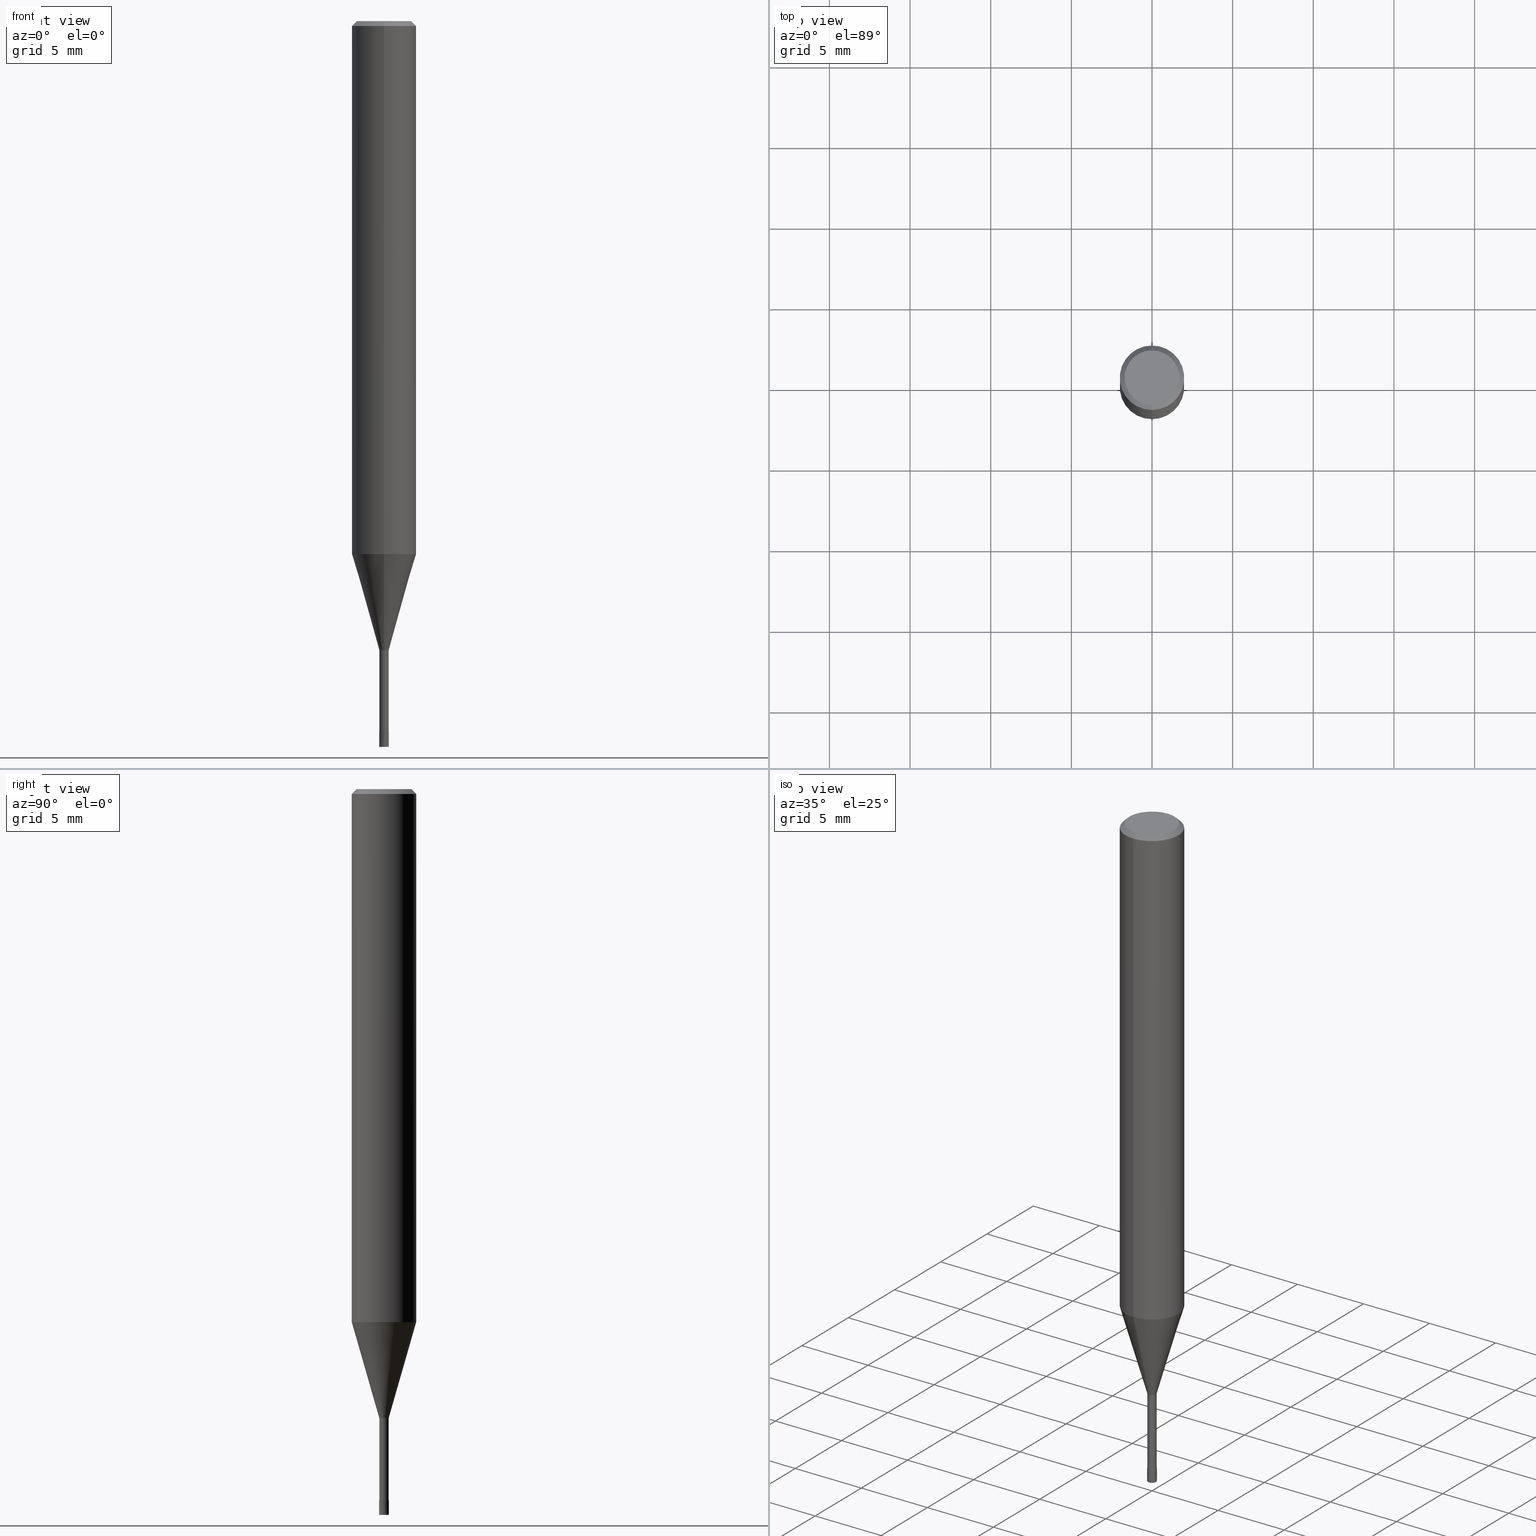
[diagram: canonical four-view strip — front | top / right | iso, engineering-drawing reading convention]
A machine part, canonical four-view strip (front | top / right | iso — engineering-drawing reading convention). The complete STEP part file that produces these views, byte-faithful:
ISO-10303-21;
HEADER;
FILE_DESCRIPTION(('no description'),'unknown implementation level');
FILE_NAME('HLS2006-060-Huellk.stp','  ',('CIMSOURCE GmbH'),('CADClick - KiM GmbH - www.kimweb.de'),'unknown preprocess','ACIS','unknown authorization');
FILE_SCHEMA(('automotive_design'));
ENDSEC;
DATA;
#1=MECHANICAL_DESIGN_GEOMETRIC_PRESENTATION_REPRESENTATION(' ',(#14,#15,#16,#17,#18,#19,#20,#21,#22,#23,#24,#25,#26,#27,#28,#29,#30,#31,#32,#33,#34,#35,#36,#37,#38,#39,#40,#41,#42,#43,#44,#45,#46,#47,#48,#49,#50,#51,#52,#53,#54,#55,#56,#57,#58,#59,#60,#61,#62,#63,#64,#65,#66,#67,#68,#69,#70,#71,#72),#10);
#2=PRODUCT_DEFINITION_CONTEXT('',#73,'design');
#3=APPLICATION_PROTOCOL_DEFINITION('INTERNATIONAL STANDARD','automotive_design',1994,#73);
#4=PRODUCT_CATEGORY_RELATIONSHIP('NONE','NONE',#74,#75);
#5=SHAPE_DEFINITION_REPRESENTATION(#76,#77);
#6=PRODUCT_DEFINITION_CONTEXT('',#78,'design');
#7=APPLICATION_PROTOCOL_DEFINITION('INTERNATIONAL STANDARD','automotive_design',1994,#78);
#8=PRODUCT_CATEGORY_RELATIONSHIP('NONE','NONE',#79,#80);
#9=SHAPE_DEFINITION_REPRESENTATION(#81,#82);
#10= (GEOMETRIC_REPRESENTATION_CONTEXT(3)GLOBAL_UNCERTAINTY_ASSIGNED_CONTEXT((#85))GLOBAL_UNIT_ASSIGNED_CONTEXT((#87,#88,#89))REPRESENTATION_CONTEXT('NONE','WORKSPACE'));
#14=STYLED_ITEM('',(#91),#92);
#15=STYLED_ITEM('',(#93),#94);
#16=STYLED_ITEM('',(#95),#96);
#17=STYLED_ITEM('',(#97),#98);
#18=STYLED_ITEM('',(#99),#100);
#19=STYLED_ITEM('',(#101),#102);
#20=STYLED_ITEM('',(#103),#104);
#21=STYLED_ITEM('',(#105),#106);
#22=STYLED_ITEM('',(#107),#108);
#23=STYLED_ITEM('',(#109),#110);
#24=STYLED_ITEM('',(#111),#112);
#25=STYLED_ITEM('',(#113),#114);
#26=STYLED_ITEM('',(#115),#116);
#27=STYLED_ITEM('',(#117),#118);
#28=STYLED_ITEM('',(#119),#120);
#29=STYLED_ITEM('',(#121),#122);
#30=STYLED_ITEM('',(#123),#124);
#31=STYLED_ITEM('',(#125),#126);
#32=STYLED_ITEM('',(#127),#128);
#33=STYLED_ITEM('',(#129),#130);
#34=STYLED_ITEM('',(#131),#132);
#35=STYLED_ITEM('',(#133),#134);
#36=STYLED_ITEM('',(#135),#136);
#37=STYLED_ITEM('',(#137),#138);
#38=STYLED_ITEM('',(#139),#140);
#39=STYLED_ITEM('',(#141),#142);
#40=STYLED_ITEM('',(#143),#144);
#41=STYLED_ITEM('',(#145),#146);
#42=STYLED_ITEM('',(#147),#148);
#43=STYLED_ITEM('',(#149),#150);
#44=STYLED_ITEM('',(#151),#152);
#45=STYLED_ITEM('',(#153),#154);
#46=STYLED_ITEM('',(#155),#156);
#47=STYLED_ITEM('',(#157),#158);
#48=STYLED_ITEM('',(#159),#160);
#49=STYLED_ITEM('',(#161),#162);
#50=STYLED_ITEM('',(#163),#164);
#51=STYLED_ITEM('',(#165),#166);
#52=STYLED_ITEM('',(#167),#168);
#53=STYLED_ITEM('',(#169),#170);
#54=STYLED_ITEM('',(#171),#172);
#55=STYLED_ITEM('',(#173),#174);
#56=STYLED_ITEM('',(#175),#176);
#57=STYLED_ITEM('',(#177),#178);
#58=STYLED_ITEM('',(#179),#180);
#59=STYLED_ITEM('',(#181),#182);
#60=STYLED_ITEM('',(#183),#184);
#61=STYLED_ITEM('',(#185),#186);
#62=STYLED_ITEM('',(#187),#188);
#63=STYLED_ITEM('',(#189),#190);
#64=STYLED_ITEM('',(#191),#192);
#65=STYLED_ITEM('',(#193),#194);
#66=STYLED_ITEM('',(#195),#196);
#67=STYLED_ITEM('',(#197),#198);
#68=STYLED_ITEM('',(#199),#200);
#69=STYLED_ITEM('',(#201),#202);
#70=STYLED_ITEM('',(#203),#204);
#71=STYLED_ITEM('',(#205),#206);
#72=STYLED_ITEM('',(#207),#208);
#73=APPLICATION_CONTEXT(' ');
#74=PRODUCT_CATEGORY('part','NONE');
#75=PRODUCT_RELATED_PRODUCT_CATEGORY('detail',' ',(#209));
#76=PRODUCT_DEFINITION_SHAPE('NONE','NONE',#210);
#77=ADVANCED_BREP_SHAPE_REPRESENTATION('1',(#122,#211),#10);
#78=APPLICATION_CONTEXT(' ');
#79=PRODUCT_CATEGORY('part','NONE');
#80=PRODUCT_RELATED_PRODUCT_CATEGORY('detail',' ',(#212));
#81=PRODUCT_DEFINITION_SHAPE('NONE','NONE',#213);
#82=ADVANCED_BREP_SHAPE_REPRESENTATION('2',(#194,#214),#10);
#85=UNCERTAINTY_MEASURE_WITH_UNIT(LENGTH_MEASURE(1.0E-006),#87,'','');
#87= (CONVERSION_BASED_UNIT('MILLIMETRE',#217)LENGTH_UNIT()NAMED_UNIT(#220));
#88= (NAMED_UNIT(#222)PLANE_ANGLE_UNIT()SI_UNIT($,.RADIAN.));
#89= (NAMED_UNIT(#222)SOLID_ANGLE_UNIT()SI_UNIT($,.STERADIAN.));
#91=PRESENTATION_STYLE_ASSIGNMENT((#228));
#92=ADVANCED_FACE('',(#229),#230,.T.);
#93=PRESENTATION_STYLE_ASSIGNMENT((#231));
#94=VERTEX_POINT('',#232);
#95=PRESENTATION_STYLE_ASSIGNMENT((#233));
#96=VERTEX_POINT('',#234);
#97=PRESENTATION_STYLE_ASSIGNMENT((#235));
#98=EDGE_CURVE('',#108,#172,#236,.T.);
#99=PRESENTATION_STYLE_ASSIGNMENT((#237));
#100=VERTEX_POINT('',#238);
#101=PRESENTATION_STYLE_ASSIGNMENT((#239));
#102=EDGE_CURVE('',#142,#148,#240,.T.);
#103=PRESENTATION_STYLE_ASSIGNMENT((#241));
#104=EDGE_CURVE('',#178,#116,#242,.T.);
#105=PRESENTATION_STYLE_ASSIGNMENT((#243));
#106=EDGE_CURVE('',#142,#200,#244,.T.);
#107=PRESENTATION_STYLE_ASSIGNMENT((#245));
#108=VERTEX_POINT('',#246);
#109=PRESENTATION_STYLE_ASSIGNMENT((#247));
#110=EDGE_CURVE('',#94,#188,#248,.T.);
#111=PRESENTATION_STYLE_ASSIGNMENT((#249));
#112=EDGE_CURVE('',#188,#100,#250,.T.);
#113=PRESENTATION_STYLE_ASSIGNMENT((#251));
#114=ADVANCED_FACE('',(#252),#253,.T.);
#115=PRESENTATION_STYLE_ASSIGNMENT((#254));
#116=VERTEX_POINT('',#255);
#117=PRESENTATION_STYLE_ASSIGNMENT((#256));
#118=EDGE_CURVE('',#188,#116,#257,.T.);
#119=PRESENTATION_STYLE_ASSIGNMENT((#258));
#120=EDGE_CURVE('',#148,#96,#259,.T.);
#121=PRESENTATION_STYLE_ASSIGNMENT((#260));
#122=MANIFOLD_SOLID_BREP('1',#261);
#123=PRESENTATION_STYLE_ASSIGNMENT((#262));
#124=VERTEX_POINT('',#263);
#125=PRESENTATION_STYLE_ASSIGNMENT((#264));
#126=EDGE_CURVE('',#100,#188,#265,.T.);
#127=PRESENTATION_STYLE_ASSIGNMENT((#266));
#128=ADVANCED_FACE('',(#267,#268),#269,.T.);
#129=PRESENTATION_STYLE_ASSIGNMENT((#270));
#130=ADVANCED_FACE('',(#271),#272,.T.);
#131=PRESENTATION_STYLE_ASSIGNMENT((#273));
#132=EDGE_CURVE('',#196,#108,#274,.T.);
#133=PRESENTATION_STYLE_ASSIGNMENT((#275));
#134=EDGE_CURVE('',#172,#124,#276,.T.);
#135=PRESENTATION_STYLE_ASSIGNMENT((#277));
#136=EDGE_CURVE('',#190,#96,#278,.T.);
#137=PRESENTATION_STYLE_ASSIGNMENT((#279));
#138=ADVANCED_FACE('',(#280),#281,.T.);
#139=PRESENTATION_STYLE_ASSIGNMENT((#282));
#140=ADVANCED_FACE('',(#283),#284,.T.);
#141=PRESENTATION_STYLE_ASSIGNMENT((#285));
#142=VERTEX_POINT('',#286);
#143=PRESENTATION_STYLE_ASSIGNMENT((#287));
#144=EDGE_CURVE('',#190,#208,#288,.T.);
#145=PRESENTATION_STYLE_ASSIGNMENT((#289));
#146=EDGE_CURVE('',#148,#208,#290,.T.);
#147=PRESENTATION_STYLE_ASSIGNMENT((#291));
#148=VERTEX_POINT('',#292);
#149=PRESENTATION_STYLE_ASSIGNMENT((#293));
#150=ADVANCED_FACE('',(#294),#295,.T.);
#151=PRESENTATION_STYLE_ASSIGNMENT((#296));
#152=VERTEX_POINT('',#297);
#153=PRESENTATION_STYLE_ASSIGNMENT((#298));
#154=EDGE_CURVE('',#172,#108,#299,.T.);
#155=PRESENTATION_STYLE_ASSIGNMENT((#300));
#156=EDGE_CURVE('',#152,#94,#301,.T.);
#157=PRESENTATION_STYLE_ASSIGNMENT((#302));
#158=EDGE_CURVE('',#200,#142,#303,.T.);
#159=PRESENTATION_STYLE_ASSIGNMENT((#304));
#160=ADVANCED_FACE('',(#305),#306,.T.);
#161=PRESENTATION_STYLE_ASSIGNMENT((#307));
#162=EDGE_CURVE('',#178,#100,#308,.T.);
#163=PRESENTATION_STYLE_ASSIGNMENT((#309));
#164=ADVANCED_FACE('',(#310),#311,.T.);
#165=PRESENTATION_STYLE_ASSIGNMENT((#312));
#166=ADVANCED_FACE('',(#313),#314,.T.);
#167=PRESENTATION_STYLE_ASSIGNMENT((#315));
#168=EDGE_CURVE('',#94,#152,#316,.T.);
#169=PRESENTATION_STYLE_ASSIGNMENT((#317));
#170=EDGE_CURVE('',#100,#152,#318,.T.);
#171=PRESENTATION_STYLE_ASSIGNMENT((#319));
#172=VERTEX_POINT('',#320);
#173=PRESENTATION_STYLE_ASSIGNMENT((#321));
#174=EDGE_CURVE('',#124,#196,#322,.T.);
#175=PRESENTATION_STYLE_ASSIGNMENT((#323));
#176=ADVANCED_FACE('',(#324),#325,.T.);
#177=PRESENTATION_STYLE_ASSIGNMENT((#326));
#178=VERTEX_POINT('',#327);
#179=PRESENTATION_STYLE_ASSIGNMENT((#328));
#180=EDGE_CURVE('',#208,#190,#329,.T.);
#181=PRESENTATION_STYLE_ASSIGNMENT((#330));
#182=EDGE_CURVE('',#96,#148,#331,.T.);
#183=PRESENTATION_STYLE_ASSIGNMENT((#332));
#184=ADVANCED_FACE('',(#333),#334,.T.);
#185=PRESENTATION_STYLE_ASSIGNMENT((#335));
#186=EDGE_CURVE('',#196,#124,#336,.T.);
#187=PRESENTATION_STYLE_ASSIGNMENT((#337));
#188=VERTEX_POINT('',#338);
#189=PRESENTATION_STYLE_ASSIGNMENT((#339));
#190=VERTEX_POINT('',#340);
#191=PRESENTATION_STYLE_ASSIGNMENT((#341));
#192=ADVANCED_FACE('',(#342),#343,.T.);
#193=PRESENTATION_STYLE_ASSIGNMENT((#344));
#194=MANIFOLD_SOLID_BREP('2',#345);
#195=PRESENTATION_STYLE_ASSIGNMENT((#346));
#196=VERTEX_POINT('',#347);
#197=PRESENTATION_STYLE_ASSIGNMENT((#348));
#198=ADVANCED_FACE('',(#349),#350,.T.);
#199=PRESENTATION_STYLE_ASSIGNMENT((#351));
#200=VERTEX_POINT('',#352);
#201=PRESENTATION_STYLE_ASSIGNMENT((#353));
#202=EDGE_CURVE('',#96,#200,#354,.T.);
#203=PRESENTATION_STYLE_ASSIGNMENT((#355));
#204=EDGE_CURVE('',#116,#178,#356,.T.);
#205=PRESENTATION_STYLE_ASSIGNMENT((#357));
#206=ADVANCED_FACE('',(#358),#359,.T.);
#207=PRESENTATION_STYLE_ASSIGNMENT((#360));
#208=VERTEX_POINT('',#361);
#209=PRODUCT('1','1','PART-1-DESC',(#362));
#210=PRODUCT_DEFINITION('NONE','NONE',#363,#2);
#211=AXIS2_PLACEMENT_3D('',#364,#365,#366);
#212=PRODUCT('2','2','PART-2-DESC',(#367));
#213=PRODUCT_DEFINITION('NONE','NONE',#368,#6);
#214=AXIS2_PLACEMENT_3D('',#369,#370,#371);
#217=LENGTH_MEASURE_WITH_UNIT(LENGTH_MEASURE(1.0),#372);
#220=DIMENSIONAL_EXPONENTS(1.0,0.0,0.0,0.0,0.0,0.0,0.0);
#222=DIMENSIONAL_EXPONENTS(0.0,0.0,0.0,0.0,0.0,0.0,0.0);
#228=SURFACE_STYLE_USAGE(.BOTH.,#373);
#229=FACE_OUTER_BOUND('',#374,.T.);
#230=CYLINDRICAL_SURFACE('',#375,0.28995);
#231=POINT_STYLE(' ',#376,POSITIVE_LENGTH_MEASURE(1.0E-006),#377);
#232=CARTESIAN_POINT('',(2.44921270764475E-016,-2.0,-33.037));
#233=POINT_STYLE(' ',#378,POSITIVE_LENGTH_MEASURE(1.0E-006),#379);
#234=CARTESIAN_POINT('',(0.0,0.28995,-39.0));
#235=CURVE_STYLE('',#380,POSITIVE_LENGTH_MEASURE(1.0E-006),#381);
#236=CIRCLE('',#382,0.2999);
#237=POINT_STYLE(' ',#383,POSITIVE_LENGTH_MEASURE(1.0E-006),#384);
#238=CARTESIAN_POINT('',(0.0,2.0,-0.299999999999997));
#239=CURVE_STYLE('',#385,POSITIVE_LENGTH_MEASURE(1.0E-006),#386);
#240=LINE('',#387,#388);
#241=CURVE_STYLE('',#389,POSITIVE_LENGTH_MEASURE(1.0E-006),#390);
#242=CIRCLE('',#391,1.7);
#243=CURVE_STYLE('',#392,POSITIVE_LENGTH_MEASURE(1.0E-006),#393);
#244=CIRCLE('',#394,0.28995);
#245=POINT_STYLE(' ',#395,POSITIVE_LENGTH_MEASURE(1.0E-006),#396);
#246=CARTESIAN_POINT('',(3.67259445511331E-017,-0.2999,-44.1));
#247=CURVE_STYLE('',#397,POSITIVE_LENGTH_MEASURE(1.0E-006),#398);
#248=LINE('',#399,#400);
#249=CURVE_STYLE('',#401,POSITIVE_LENGTH_MEASURE(1.0E-006),#402);
#250=CIRCLE('',#403,2.0);
#251=SURFACE_STYLE_USAGE(.BOTH.,#404);
#252=FACE_OUTER_BOUND('',#405,.T.);
#253=CONICAL_SURFACE('',#406,0.29995,0.000111111110653851);
#254=POINT_STYLE(' ',#407,POSITIVE_LENGTH_MEASURE(1.0E-006),#408);
#255=CARTESIAN_POINT('',(2.08183080149804E-016,-1.7,0.0));
#256=CURVE_STYLE('',#409,POSITIVE_LENGTH_MEASURE(1.0E-006),#410);
#257=LINE('',#411,#412);
#258=CURVE_STYLE('',#413,POSITIVE_LENGTH_MEASURE(1.0E-006),#414);
#259=CIRCLE('',#415,0.28995);
#260=SURFACE_STYLE_USAGE(.BOTH.,#416);
#261=CLOSED_SHELL('',(#92,#176,#150,#198,#128,#206,#140,#138,#184,#130,#164));
#262=POINT_STYLE(' ',#417,POSITIVE_LENGTH_MEASURE(1.0E-006),#418);
#263=CARTESIAN_POINT('',(0.0,0.3,-45.0));
#264=CURVE_STYLE('',#419,POSITIVE_LENGTH_MEASURE(1.0E-006),#420);
#265=CIRCLE('',#421,2.0);
#266=SURFACE_STYLE_USAGE(.BOTH.,#422);
#267=FACE_OUTER_BOUND('',#423,.T.);
#268=FACE_BOUND('',#424,.T.);
#269=PLANE('',#425);
#270=SURFACE_STYLE_USAGE(.BOTH.,#426);
#271=FACE_OUTER_BOUND('',#427,.T.);
#272=CYLINDRICAL_SURFACE('',#428,0.28995);
#273=CURVE_STYLE('',#429,POSITIVE_LENGTH_MEASURE(1.0E-006),#430);
#274=LINE('',#431,#432);
#275=CURVE_STYLE('',#433,POSITIVE_LENGTH_MEASURE(1.0E-006),#434);
#276=LINE('',#435,#436);
#277=CURVE_STYLE('',#437,POSITIVE_LENGTH_MEASURE(1.0E-006),#438);
#278=LINE('',#439,#440);
#279=SURFACE_STYLE_USAGE(.BOTH.,#441);
#280=FACE_OUTER_BOUND('',#442,.T.);
#281=CYLINDRICAL_SURFACE('',#443,2.0);
#282=SURFACE_STYLE_USAGE(.BOTH.,#444);
#283=FACE_OUTER_BOUND('',#445,.T.);
#284=CONICAL_SURFACE('',#446,1.85,0.785398163397453);
#285=POINT_STYLE(' ',#447,POSITIVE_LENGTH_MEASURE(1.0E-006),#448);
#286=CARTESIAN_POINT('',(3.55074612290798E-017,-0.28995,-44.1));
#287=CURVE_STYLE('',#449,POSITIVE_LENGTH_MEASURE(1.0E-006),#450);
#288=CIRCLE('',#451,1.99995);
#289=CURVE_STYLE('',#452,POSITIVE_LENGTH_MEASURE(1.0E-006),#453);
#290=LINE('',#454,#455);
#291=POINT_STYLE(' ',#456,POSITIVE_LENGTH_MEASURE(1.0E-006),#457);
#292=CARTESIAN_POINT('',(3.55074612290798E-017,-0.28995,-39.0));
#293=SURFACE_STYLE_USAGE(.BOTH.,#458);
#294=FACE_OUTER_BOUND('',#459,.T.);
#295=CYLINDRICAL_SURFACE('',#460,2.0);
#296=POINT_STYLE(' ',#461,POSITIVE_LENGTH_MEASURE(1.0E-006),#462);
#297=CARTESIAN_POINT('',(0.0,2.0,-33.037));
#298=CURVE_STYLE('',#463,POSITIVE_LENGTH_MEASURE(1.0E-006),#464);
#299=CIRCLE('',#465,0.2999);
#300=CURVE_STYLE('',#466,POSITIVE_LENGTH_MEASURE(1.0E-006),#467);
#301=CIRCLE('',#468,2.0);
#302=CURVE_STYLE('',#469,POSITIVE_LENGTH_MEASURE(1.0E-006),#470);
#303=CIRCLE('',#471,0.28995);
#304=SURFACE_STYLE_USAGE(.BOTH.,#472);
#305=FACE_OUTER_BOUND('',#473,.T.);
#306=CONICAL_SURFACE('',#474,0.29995,0.000111111110653851);
#307=CURVE_STYLE('',#475,POSITIVE_LENGTH_MEASURE(1.0E-006),#476);
#308=LINE('',#477,#478);
#309=SURFACE_STYLE_USAGE(.BOTH.,#479);
#310=FACE_OUTER_BOUND('',#480,.T.);
#311=PLANE('',#481);
#312=SURFACE_STYLE_USAGE(.BOTH.,#482);
#313=FACE_OUTER_BOUND('',#483,.T.);
#314=PLANE('',#484);
#315=CURVE_STYLE('',#485,POSITIVE_LENGTH_MEASURE(1.0E-006),#486);
#316=CIRCLE('',#487,2.0);
#317=CURVE_STYLE('',#488,POSITIVE_LENGTH_MEASURE(1.0E-006),#489);
#318=LINE('',#490,#491);
#319=POINT_STYLE(' ',#492,POSITIVE_LENGTH_MEASURE(1.0E-006),#493);
#320=CARTESIAN_POINT('',(0.0,0.2999,-44.1));
#321=CURVE_STYLE('',#494,POSITIVE_LENGTH_MEASURE(1.0E-006),#495);
#322=CIRCLE('',#496,0.3);
#323=SURFACE_STYLE_USAGE(.BOTH.,#497);
#324=FACE_OUTER_BOUND('',#498,.T.);
#325=CONICAL_SURFACE('',#499,1.14495,0.279273950674422);
#326=POINT_STYLE(' ',#500,POSITIVE_LENGTH_MEASURE(1.0E-006),#501);
#327=CARTESIAN_POINT('',(0.0,1.7,0.0));
#328=CURVE_STYLE('',#502,POSITIVE_LENGTH_MEASURE(1.0E-006),#503);
#329=CIRCLE('',#504,1.99995);
#330=CURVE_STYLE('',#505,POSITIVE_LENGTH_MEASURE(1.0E-006),#506);
#331=CIRCLE('',#507,0.28995);
#332=SURFACE_STYLE_USAGE(.BOTH.,#508);
#333=FACE_OUTER_BOUND('',#509,.T.);
#334=CONICAL_SURFACE('',#510,1.14495,0.279273950674422);
#335=CURVE_STYLE('',#511,POSITIVE_LENGTH_MEASURE(1.0E-006),#512);
#336=CIRCLE('',#513,0.3);
#337=POINT_STYLE(' ',#514,POSITIVE_LENGTH_MEASURE(1.0E-006),#515);
#338=CARTESIAN_POINT('',(2.44921270764475E-016,-2.0,-0.299999999999997));
#339=POINT_STYLE(' ',#516,POSITIVE_LENGTH_MEASURE(1.0E-006),#517);
#340=CARTESIAN_POINT('',(0.0,1.99995,-33.037));
#341=SURFACE_STYLE_USAGE(.BOTH.,#518);
#342=FACE_OUTER_BOUND('',#519,.T.);
#343=PLANE('',#520);
#344=SURFACE_STYLE_USAGE(.BOTH.,#521);
#345=CLOSED_SHELL('',(#114,#166,#160,#192));
#346=POINT_STYLE(' ',#522,POSITIVE_LENGTH_MEASURE(1.0E-006),#523);
#347=CARTESIAN_POINT('',(3.67381906146713E-017,-0.3,-45.0));
#348=SURFACE_STYLE_USAGE(.BOTH.,#524);
#349=FACE_OUTER_BOUND('',#525,.T.);
#350=CONICAL_SURFACE('',#526,1.85,0.785398163397453);
#351=POINT_STYLE(' ',#527,POSITIVE_LENGTH_MEASURE(1.0E-006),#528);
#352=CARTESIAN_POINT('',(0.0,0.28995,-44.1));
#353=CURVE_STYLE('',#529,POSITIVE_LENGTH_MEASURE(1.0E-006),#530);
#354=LINE('',#531,#532);
#355=CURVE_STYLE('',#533,POSITIVE_LENGTH_MEASURE(1.0E-006),#534);
#356=CIRCLE('',#535,1.7);
#357=SURFACE_STYLE_USAGE(.BOTH.,#536);
#358=FACE_OUTER_BOUND('',#537,.T.);
#359=PLANE('',#538);
#360=POINT_STYLE(' ',#539,POSITIVE_LENGTH_MEASURE(1.0E-006),#540);
#361=CARTESIAN_POINT('',(2.44915147732706E-016,-1.99995,-33.037));
#362=PRODUCT_CONTEXT('',#73,'mechanical');
#363=PRODUCT_DEFINITION_FORMATION_WITH_SPECIFIED_SOURCE(' ','NONE',#209,.NOT_KNOWN.);
#364=CARTESIAN_POINT('',(0.0,0.0,0.0));
#365=DIRECTION('',(0.0,0.0,1.0));
#366=DIRECTION('',(1.0,0.0,0.0));
#367=PRODUCT_CONTEXT('',#78,'mechanical');
#368=PRODUCT_DEFINITION_FORMATION_WITH_SPECIFIED_SOURCE(' ','NONE',#212,.NOT_KNOWN.);
#369=CARTESIAN_POINT('',(0.0,0.0,0.0));
#370=DIRECTION('',(0.0,0.0,1.0));
#371=DIRECTION('',(1.0,0.0,0.0));
#372= (NAMED_UNIT(#220)LENGTH_UNIT()SI_UNIT(.MILLI.,.METRE.));
#373=SURFACE_SIDE_STYLE('',(#542));
#374=EDGE_LOOP('',(#543,#544,#545,#546));
#375=AXIS2_PLACEMENT_3D('',#547,#548,#549);
#376=PRE_DEFINED_MARKER('');
#377=COLOUR_RGB('',0.498039215803146,0.498039215803146,0.498039215803146);
#378=PRE_DEFINED_MARKER('');
#379=COLOUR_RGB('',0.498039215803146,0.498039215803146,0.498039215803146);
#380=DRAUGHTING_PRE_DEFINED_CURVE_FONT('continuous');
#381=COLOUR_RGB('',0.800000011920929,0.800000011920929,0.800000011920929);
#382=AXIS2_PLACEMENT_3D('',#550,#551,#552);
#383=PRE_DEFINED_MARKER('');
#384=COLOUR_RGB('',0.498039215803146,0.498039215803146,0.498039215803146);
#385=DRAUGHTING_PRE_DEFINED_CURVE_FONT('continuous');
#386=COLOUR_RGB('',0.498039215803146,0.498039215803146,0.498039215803146);
#387=CARTESIAN_POINT('',(3.55074612290798E-017,-0.28995,-41.55));
#388=VECTOR('',#553,1.0);
#389=DRAUGHTING_PRE_DEFINED_CURVE_FONT('continuous');
#390=COLOUR_RGB('',0.498039215803146,0.498039215803146,0.498039215803146);
#391=AXIS2_PLACEMENT_3D('',#554,#555,#556);
#392=DRAUGHTING_PRE_DEFINED_CURVE_FONT('continuous');
#393=COLOUR_RGB('',0.498039215803146,0.498039215803146,0.498039215803146);
#394=AXIS2_PLACEMENT_3D('',#557,#558,#559);
#395=PRE_DEFINED_MARKER('');
#396=COLOUR_RGB('',0.800000011920929,0.800000011920929,0.800000011920929);
#397=DRAUGHTING_PRE_DEFINED_CURVE_FONT('continuous');
#398=COLOUR_RGB('',0.498039215803146,0.498039215803146,0.498039215803146);
#399=CARTESIAN_POINT('',(2.44921270764475E-016,-2.0,-16.6685));
#400=VECTOR('',#560,1.0);
#401=DRAUGHTING_PRE_DEFINED_CURVE_FONT('continuous');
#402=COLOUR_RGB('',0.498039215803146,0.498039215803146,0.498039215803146);
#403=AXIS2_PLACEMENT_3D('',#561,#562,#563);
#404=SURFACE_SIDE_STYLE('',(#564));
#405=EDGE_LOOP('',(#565,#566,#567,#568));
#406=AXIS2_PLACEMENT_3D('',#569,#570,#571);
#407=PRE_DEFINED_MARKER('');
#408=COLOUR_RGB('',0.498039215803146,0.498039215803146,0.498039215803146);
#409=DRAUGHTING_PRE_DEFINED_CURVE_FONT('continuous');
#410=COLOUR_RGB('',0.498039215803146,0.498039215803146,0.498039215803146);
#411=CARTESIAN_POINT('',(2.2655217545714E-016,-1.85,-0.149999999999999));
#412=VECTOR('',#572,1.0);
#413=DRAUGHTING_PRE_DEFINED_CURVE_FONT('continuous');
#414=COLOUR_RGB('',0.498039215803146,0.498039215803146,0.498039215803146);
#415=AXIS2_PLACEMENT_3D('',#573,#574,#575);
#416=SURFACE_SIDE_STYLE('',(#576));
#417=PRE_DEFINED_MARKER('');
#418=COLOUR_RGB('',0.800000011920929,0.800000011920929,0.800000011920929);
#419=DRAUGHTING_PRE_DEFINED_CURVE_FONT('continuous');
#420=COLOUR_RGB('',0.498039215803146,0.498039215803146,0.498039215803146);
#421=AXIS2_PLACEMENT_3D('',#577,#578,#579);
#422=SURFACE_SIDE_STYLE('',(#580));
#423=EDGE_LOOP('',(#581,#582));
#424=EDGE_LOOP('',(#583,#584));
#425=AXIS2_PLACEMENT_3D('',#585,#586,#587);
#426=SURFACE_SIDE_STYLE('',(#588));
#427=EDGE_LOOP('',(#589,#590,#591,#592));
#428=AXIS2_PLACEMENT_3D('',#593,#594,#595);
#429=DRAUGHTING_PRE_DEFINED_CURVE_FONT('continuous');
#430=COLOUR_RGB('',0.800000011920929,0.800000011920929,0.800000011920929);
#431=CARTESIAN_POINT('',(3.67320675829022E-017,-0.29995,-44.55));
#432=VECTOR('',#596,1.0);
#433=DRAUGHTING_PRE_DEFINED_CURVE_FONT('continuous');
#434=COLOUR_RGB('',0.800000011920929,0.800000011920929,0.800000011920929);
#435=CARTESIAN_POINT('',(-3.67320675829022E-017,0.29995,-44.55));
#436=VECTOR('',#597,1.0);
#437=DRAUGHTING_PRE_DEFINED_CURVE_FONT('continuous');
#438=COLOUR_RGB('',0.498039215803146,0.498039215803146,0.498039215803146);
#439=CARTESIAN_POINT('',(-1.40211304480893E-016,1.14495,-36.0185));
#440=VECTOR('',#598,1.0);
#441=SURFACE_SIDE_STYLE('',(#599));
#442=EDGE_LOOP('',(#600,#601,#602,#603));
#443=AXIS2_PLACEMENT_3D('',#604,#605,#606);
#444=SURFACE_SIDE_STYLE('',(#607));
#445=EDGE_LOOP('',(#608,#609,#610,#611));
#446=AXIS2_PLACEMENT_3D('',#612,#613,#614);
#447=PRE_DEFINED_MARKER('');
#448=COLOUR_RGB('',0.498039215803146,0.498039215803146,0.498039215803146);
#449=DRAUGHTING_PRE_DEFINED_CURVE_FONT('continuous');
#450=COLOUR_RGB('',0.498039215803146,0.498039215803146,0.498039215803146);
#451=AXIS2_PLACEMENT_3D('',#615,#616,#617);
#452=DRAUGHTING_PRE_DEFINED_CURVE_FONT('continuous');
#453=COLOUR_RGB('',0.498039215803146,0.498039215803146,0.498039215803146);
#454=CARTESIAN_POINT('',(1.40211304480893E-016,-1.14495,-36.0185));
#455=VECTOR('',#618,1.0);
#456=PRE_DEFINED_MARKER('');
#457=COLOUR_RGB('',0.498039215803146,0.498039215803146,0.498039215803146);
#458=SURFACE_SIDE_STYLE('',(#619));
#459=EDGE_LOOP('',(#620,#621,#622,#623));
#460=AXIS2_PLACEMENT_3D('',#624,#625,#626);
#461=PRE_DEFINED_MARKER('');
#462=COLOUR_RGB('',0.498039215803146,0.498039215803146,0.498039215803146);
#463=DRAUGHTING_PRE_DEFINED_CURVE_FONT('continuous');
#464=COLOUR_RGB('',0.800000011920929,0.800000011920929,0.800000011920929);
#465=AXIS2_PLACEMENT_3D('',#627,#628,#629);
#466=DRAUGHTING_PRE_DEFINED_CURVE_FONT('continuous');
#467=COLOUR_RGB('',0.498039215803146,0.498039215803146,0.498039215803146);
#468=AXIS2_PLACEMENT_3D('',#630,#631,#632);
#469=DRAUGHTING_PRE_DEFINED_CURVE_FONT('continuous');
#470=COLOUR_RGB('',0.498039215803146,0.498039215803146,0.498039215803146);
#471=AXIS2_PLACEMENT_3D('',#633,#634,#635);
#472=SURFACE_SIDE_STYLE('',(#636));
#473=EDGE_LOOP('',(#637,#638,#639,#640));
#474=AXIS2_PLACEMENT_3D('',#641,#642,#643);
#475=DRAUGHTING_PRE_DEFINED_CURVE_FONT('continuous');
#476=COLOUR_RGB('',0.498039215803146,0.498039215803146,0.498039215803146);
#477=CARTESIAN_POINT('',(-2.2655217545714E-016,1.85,-0.149999999999999));
#478=VECTOR('',#644,1.0);
#479=SURFACE_SIDE_STYLE('',(#645));
#480=EDGE_LOOP('',(#646,#647));
#481=AXIS2_PLACEMENT_3D('',#648,#649,#650);
#482=SURFACE_SIDE_STYLE('',(#651));
#483=EDGE_LOOP('',(#652,#653));
#484=AXIS2_PLACEMENT_3D('',#654,#655,#656);
#485=DRAUGHTING_PRE_DEFINED_CURVE_FONT('continuous');
#486=COLOUR_RGB('',0.498039215803146,0.498039215803146,0.498039215803146);
#487=AXIS2_PLACEMENT_3D('',#657,#658,#659);
#488=DRAUGHTING_PRE_DEFINED_CURVE_FONT('continuous');
#489=COLOUR_RGB('',0.498039215803146,0.498039215803146,0.498039215803146);
#490=CARTESIAN_POINT('',(-2.44921270764475E-016,2.0,-16.6685));
#491=VECTOR('',#660,1.0);
#492=PRE_DEFINED_MARKER('');
#493=COLOUR_RGB('',0.800000011920929,0.800000011920929,0.800000011920929);
#494=DRAUGHTING_PRE_DEFINED_CURVE_FONT('continuous');
#495=COLOUR_RGB('',0.800000011920929,0.800000011920929,0.800000011920929);
#496=AXIS2_PLACEMENT_3D('',#661,#662,#663);
#497=SURFACE_SIDE_STYLE('',(#664));
#498=EDGE_LOOP('',(#665,#666,#667,#668));
#499=AXIS2_PLACEMENT_3D('',#669,#670,#671);
#500=PRE_DEFINED_MARKER('');
#501=COLOUR_RGB('',0.498039215803146,0.498039215803146,0.498039215803146);
#502=DRAUGHTING_PRE_DEFINED_CURVE_FONT('continuous');
#503=COLOUR_RGB('',0.498039215803146,0.498039215803146,0.498039215803146);
#504=AXIS2_PLACEMENT_3D('',#672,#673,#674);
#505=DRAUGHTING_PRE_DEFINED_CURVE_FONT('continuous');
#506=COLOUR_RGB('',0.498039215803146,0.498039215803146,0.498039215803146);
#507=AXIS2_PLACEMENT_3D('',#675,#676,#677);
#508=SURFACE_SIDE_STYLE('',(#678));
#509=EDGE_LOOP('',(#679,#680,#681,#682));
#510=AXIS2_PLACEMENT_3D('',#683,#684,#685);
#511=DRAUGHTING_PRE_DEFINED_CURVE_FONT('continuous');
#512=COLOUR_RGB('',0.800000011920929,0.800000011920929,0.800000011920929);
#513=AXIS2_PLACEMENT_3D('',#686,#687,#688);
#514=PRE_DEFINED_MARKER('');
#515=COLOUR_RGB('',0.498039215803146,0.498039215803146,0.498039215803146);
#516=PRE_DEFINED_MARKER('');
#517=COLOUR_RGB('',0.498039215803146,0.498039215803146,0.498039215803146);
#518=SURFACE_SIDE_STYLE('',(#689));
#519=EDGE_LOOP('',(#690,#691));
#520=AXIS2_PLACEMENT_3D('',#692,#693,#694);
#521=SURFACE_SIDE_STYLE('',(#695));
#522=PRE_DEFINED_MARKER('');
#523=COLOUR_RGB('',0.800000011920929,0.800000011920929,0.800000011920929);
#524=SURFACE_SIDE_STYLE('',(#696));
#525=EDGE_LOOP('',(#697,#698,#699,#700));
#526=AXIS2_PLACEMENT_3D('',#701,#702,#703);
#527=PRE_DEFINED_MARKER('');
#528=COLOUR_RGB('',0.498039215803146,0.498039215803146,0.498039215803146);
#529=DRAUGHTING_PRE_DEFINED_CURVE_FONT('continuous');
#530=COLOUR_RGB('',0.498039215803146,0.498039215803146,0.498039215803146);
#531=CARTESIAN_POINT('',(-3.55074612290798E-017,0.28995,-41.55));
#532=VECTOR('',#704,1.0);
#533=DRAUGHTING_PRE_DEFINED_CURVE_FONT('continuous');
#534=COLOUR_RGB('',0.498039215803146,0.498039215803146,0.498039215803146);
#535=AXIS2_PLACEMENT_3D('',#705,#706,#707);
#536=SURFACE_SIDE_STYLE('',(#708));
#537=EDGE_LOOP('',(#709,#710));
#538=AXIS2_PLACEMENT_3D('',#711,#712,#713);
#539=PRE_DEFINED_MARKER('');
#540=COLOUR_RGB('',0.498039215803146,0.498039215803146,0.498039215803146);
#542=SURFACE_STYLE_FILL_AREA(#714);
#543=ORIENTED_EDGE('',*,*,#202,.F.);
#544=ORIENTED_EDGE('',*,*,#182,.T.);
#545=ORIENTED_EDGE('',*,*,#102,.F.);
#546=ORIENTED_EDGE('',*,*,#158,.F.);
#547=CARTESIAN_POINT('',(0.0,0.0,-41.55));
#548=DIRECTION('',(-0.0,-0.0,1.0));
#549=DIRECTION('',(0.0,1.0,0.0));
#550=CARTESIAN_POINT('',(0.0,0.0,-44.1));
#551=DIRECTION('',(0.0,0.0,-1.0));
#552=DIRECTION('',(0.0,1.0,0.0));
#553=DIRECTION('',(-0.0,-0.0,1.0));
#554=CARTESIAN_POINT('',(0.0,0.0,0.0));
#555=DIRECTION('',(0.0,0.0,-1.0));
#556=DIRECTION('',(0.0,1.0,0.0));
#557=CARTESIAN_POINT('',(0.0,0.0,-44.1));
#558=DIRECTION('',(0.0,0.0,-1.0));
#559=DIRECTION('',(0.0,1.0,0.0));
#560=DIRECTION('',(-0.0,-0.0,1.0));
#561=CARTESIAN_POINT('',(0.0,0.0,-0.299999999999997));
#562=DIRECTION('',(0.0,0.0,-1.0));
#563=DIRECTION('',(0.0,1.0,0.0));
#564=SURFACE_STYLE_FILL_AREA(#715);
#565=ORIENTED_EDGE('',*,*,#134,.F.);
#566=ORIENTED_EDGE('',*,*,#154,.T.);
#567=ORIENTED_EDGE('',*,*,#132,.F.);
#568=ORIENTED_EDGE('',*,*,#174,.F.);
#569=CARTESIAN_POINT('',(0.0,0.0,-44.55));
#570=DIRECTION('',(0.0,-0.0,-1.0));
#571=DIRECTION('',(0.0,1.0,0.0));
#572=DIRECTION('',(-8.6592745707194E-017,0.707106781186551,0.707106781186544));
#573=CARTESIAN_POINT('',(0.0,0.0,-39.0));
#574=DIRECTION('',(0.0,0.0,-1.0));
#575=DIRECTION('',(0.0,1.0,0.0));
#576=SURFACE_STYLE_FILL_AREA(#716);
#577=CARTESIAN_POINT('',(0.0,0.0,-0.299999999999997));
#578=DIRECTION('',(0.0,0.0,-1.0));
#579=DIRECTION('',(0.0,1.0,0.0));
#580=SURFACE_STYLE_FILL_AREA(#717);
#581=ORIENTED_EDGE('',*,*,#156,.T.);
#582=ORIENTED_EDGE('',*,*,#168,.T.);
#583=ORIENTED_EDGE('',*,*,#144,.F.);
#584=ORIENTED_EDGE('',*,*,#180,.F.);
#585=CARTESIAN_POINT('',(0.0,1.0,-33.037));
#586=DIRECTION('',(0.0,0.0,-1.0));
#587=DIRECTION('',(0.0,1.0,0.0));
#588=SURFACE_STYLE_FILL_AREA(#718);
#589=ORIENTED_EDGE('',*,*,#202,.T.);
#590=ORIENTED_EDGE('',*,*,#106,.F.);
#591=ORIENTED_EDGE('',*,*,#102,.T.);
#592=ORIENTED_EDGE('',*,*,#120,.T.);
#593=CARTESIAN_POINT('',(0.0,0.0,-41.55));
#594=DIRECTION('',(-0.0,-0.0,1.0));
#595=DIRECTION('',(0.0,1.0,0.0));
#596=DIRECTION('',(-1.36067371806994E-020,0.000111111110425228,0.999999993827161));
#597=DIRECTION('',(-1.36067371806994E-020,0.000111111110425228,-0.999999993827161));
#598=DIRECTION('',(3.37572295972149E-017,-0.275657802132482,-0.961255832816368));
#599=SURFACE_STYLE_FILL_AREA(#719);
#600=ORIENTED_EDGE('',*,*,#170,.T.);
#601=ORIENTED_EDGE('',*,*,#168,.F.);
#602=ORIENTED_EDGE('',*,*,#110,.T.);
#603=ORIENTED_EDGE('',*,*,#112,.T.);
#604=CARTESIAN_POINT('',(0.0,0.0,-16.6685));
#605=DIRECTION('',(-0.0,-0.0,1.0));
#606=DIRECTION('',(0.0,1.0,0.0));
#607=SURFACE_STYLE_FILL_AREA(#720);
#608=ORIENTED_EDGE('',*,*,#162,.T.);
#609=ORIENTED_EDGE('',*,*,#112,.F.);
#610=ORIENTED_EDGE('',*,*,#118,.T.);
#611=ORIENTED_EDGE('',*,*,#204,.T.);
#612=CARTESIAN_POINT('',(0.0,0.0,-0.149999999999999));
#613=DIRECTION('',(0.0,-0.0,-1.0));
#614=DIRECTION('',(0.0,1.0,0.0));
#615=CARTESIAN_POINT('',(0.0,0.0,-33.037));
#616=DIRECTION('',(0.0,0.0,-1.0));
#617=DIRECTION('',(0.0,1.0,0.0));
#618=DIRECTION('',(3.37572295972149E-017,-0.275657802132482,0.961255832816368));
#619=SURFACE_STYLE_FILL_AREA(#721);
#620=ORIENTED_EDGE('',*,*,#170,.F.);
#621=ORIENTED_EDGE('',*,*,#126,.T.);
#622=ORIENTED_EDGE('',*,*,#110,.F.);
#623=ORIENTED_EDGE('',*,*,#156,.F.);
#624=CARTESIAN_POINT('',(0.0,0.0,-16.6685));
#625=DIRECTION('',(-0.0,-0.0,1.0));
#626=DIRECTION('',(0.0,1.0,0.0));
#627=CARTESIAN_POINT('',(0.0,0.0,-44.1));
#628=DIRECTION('',(0.0,0.0,-1.0));
#629=DIRECTION('',(0.0,1.0,0.0));
#630=CARTESIAN_POINT('',(0.0,0.0,-33.037));
#631=DIRECTION('',(0.0,0.0,-1.0));
#632=DIRECTION('',(0.0,1.0,0.0));
#633=CARTESIAN_POINT('',(0.0,0.0,-44.1));
#634=DIRECTION('',(0.0,0.0,-1.0));
#635=DIRECTION('',(0.0,1.0,0.0));
#636=SURFACE_STYLE_FILL_AREA(#722);
#637=ORIENTED_EDGE('',*,*,#134,.T.);
#638=ORIENTED_EDGE('',*,*,#186,.F.);
#639=ORIENTED_EDGE('',*,*,#132,.T.);
#640=ORIENTED_EDGE('',*,*,#98,.T.);
#641=CARTESIAN_POINT('',(0.0,0.0,-44.55));
#642=DIRECTION('',(0.0,-0.0,-1.0));
#643=DIRECTION('',(0.0,1.0,0.0));
#644=DIRECTION('',(-8.6592745707194E-017,0.707106781186551,-0.707106781186544));
#645=SURFACE_STYLE_FILL_AREA(#723);
#646=ORIENTED_EDGE('',*,*,#158,.T.);
#647=ORIENTED_EDGE('',*,*,#106,.T.);
#648=CARTESIAN_POINT('',(0.0,0.144975,-44.1));
#649=DIRECTION('',(0.0,0.0,-1.0));
#650=DIRECTION('',(0.0,1.0,0.0));
#651=SURFACE_STYLE_FILL_AREA(#724);
#652=ORIENTED_EDGE('',*,*,#154,.F.);
#653=ORIENTED_EDGE('',*,*,#98,.F.);
#654=CARTESIAN_POINT('',(0.0,0.14995,-44.1));
#655=DIRECTION('',(-0.0,0.0,1.0));
#656=DIRECTION('',(0.0,-1.0,0.0));
#657=CARTESIAN_POINT('',(0.0,0.0,-33.037));
#658=DIRECTION('',(0.0,0.0,-1.0));
#659=DIRECTION('',(0.0,1.0,0.0));
#660=DIRECTION('',(0.0,0.0,-1.0));
#661=CARTESIAN_POINT('',(0.0,0.0,-45.0));
#662=DIRECTION('',(0.0,0.0,-1.0));
#663=DIRECTION('',(0.0,1.0,0.0));
#664=SURFACE_STYLE_FILL_AREA(#725);
#665=ORIENTED_EDGE('',*,*,#136,.F.);
#666=ORIENTED_EDGE('',*,*,#144,.T.);
#667=ORIENTED_EDGE('',*,*,#146,.F.);
#668=ORIENTED_EDGE('',*,*,#182,.F.);
#669=CARTESIAN_POINT('',(0.0,0.0,-36.0185));
#670=DIRECTION('',(-0.0,-0.0,1.0));
#671=DIRECTION('',(0.0,1.0,0.0));
#672=CARTESIAN_POINT('',(0.0,0.0,-33.037));
#673=DIRECTION('',(0.0,0.0,-1.0));
#674=DIRECTION('',(0.0,1.0,0.0));
#675=CARTESIAN_POINT('',(0.0,0.0,-39.0));
#676=DIRECTION('',(0.0,0.0,-1.0));
#677=DIRECTION('',(0.0,1.0,0.0));
#678=SURFACE_STYLE_FILL_AREA(#726);
#679=ORIENTED_EDGE('',*,*,#136,.T.);
#680=ORIENTED_EDGE('',*,*,#120,.F.);
#681=ORIENTED_EDGE('',*,*,#146,.T.);
#682=ORIENTED_EDGE('',*,*,#180,.T.);
#683=CARTESIAN_POINT('',(0.0,0.0,-36.0185));
#684=DIRECTION('',(-0.0,-0.0,1.0));
#685=DIRECTION('',(0.0,1.0,0.0));
#686=CARTESIAN_POINT('',(0.0,0.0,-45.0));
#687=DIRECTION('',(0.0,0.0,-1.0));
#688=DIRECTION('',(0.0,1.0,0.0));
#689=SURFACE_STYLE_FILL_AREA(#727);
#690=ORIENTED_EDGE('',*,*,#174,.T.);
#691=ORIENTED_EDGE('',*,*,#186,.T.);
#692=CARTESIAN_POINT('',(0.0,0.1475,-45.0));
#693=DIRECTION('',(0.0,0.0,-1.0));
#694=DIRECTION('',(0.0,1.0,0.0));
#695=SURFACE_STYLE_FILL_AREA(#728);
#696=SURFACE_STYLE_FILL_AREA(#729);
#697=ORIENTED_EDGE('',*,*,#162,.F.);
#698=ORIENTED_EDGE('',*,*,#104,.T.);
#699=ORIENTED_EDGE('',*,*,#118,.F.);
#700=ORIENTED_EDGE('',*,*,#126,.F.);
#701=CARTESIAN_POINT('',(0.0,0.0,-0.149999999999999));
#702=DIRECTION('',(0.0,-0.0,-1.0));
#703=DIRECTION('',(0.0,1.0,0.0));
#704=DIRECTION('',(0.0,0.0,-1.0));
#705=CARTESIAN_POINT('',(0.0,0.0,0.0));
#706=DIRECTION('',(0.0,0.0,-1.0));
#707=DIRECTION('',(0.0,1.0,0.0));
#708=SURFACE_STYLE_FILL_AREA(#730);
#709=ORIENTED_EDGE('',*,*,#104,.F.);
#710=ORIENTED_EDGE('',*,*,#204,.F.);
#711=CARTESIAN_POINT('',(0.0,0.85,0.0));
#712=DIRECTION('',(-0.0,0.0,1.0));
#713=DIRECTION('',(0.0,-1.0,0.0));
#714=FILL_AREA_STYLE('',(#731));
#715=FILL_AREA_STYLE('',(#732));
#716=FILL_AREA_STYLE('',(#733));
#717=FILL_AREA_STYLE('',(#734));
#718=FILL_AREA_STYLE('',(#735));
#719=FILL_AREA_STYLE('',(#736));
#720=FILL_AREA_STYLE('',(#737));
#721=FILL_AREA_STYLE('',(#738));
#722=FILL_AREA_STYLE('',(#739));
#723=FILL_AREA_STYLE('',(#740));
#724=FILL_AREA_STYLE('',(#741));
#725=FILL_AREA_STYLE('',(#742));
#726=FILL_AREA_STYLE('',(#743));
#727=FILL_AREA_STYLE('',(#744));
#728=FILL_AREA_STYLE('',(#745));
#729=FILL_AREA_STYLE('',(#746));
#730=FILL_AREA_STYLE('',(#747));
#731=FILL_AREA_STYLE_COLOUR('',#748);
#732=FILL_AREA_STYLE_COLOUR('',#749);
#733=FILL_AREA_STYLE_COLOUR('',#750);
#734=FILL_AREA_STYLE_COLOUR('',#751);
#735=FILL_AREA_STYLE_COLOUR('',#752);
#736=FILL_AREA_STYLE_COLOUR('',#753);
#737=FILL_AREA_STYLE_COLOUR('',#754);
#738=FILL_AREA_STYLE_COLOUR('',#755);
#739=FILL_AREA_STYLE_COLOUR('',#756);
#740=FILL_AREA_STYLE_COLOUR('',#757);
#741=FILL_AREA_STYLE_COLOUR('',#758);
#742=FILL_AREA_STYLE_COLOUR('',#759);
#743=FILL_AREA_STYLE_COLOUR('',#760);
#744=FILL_AREA_STYLE_COLOUR('',#761);
#745=FILL_AREA_STYLE_COLOUR('',#762);
#746=FILL_AREA_STYLE_COLOUR('',#763);
#747=FILL_AREA_STYLE_COLOUR('',#764);
#748=COLOUR_RGB('',0.498039215803146,0.498039215803146,0.498039215803146);
#749=COLOUR_RGB('',0.800000011920929,0.800000011920929,0.800000011920929);
#750=COLOUR_RGB('',0.498039215803146,0.498039215803146,0.498039215803146);
#751=COLOUR_RGB('',0.498039215803146,0.498039215803146,0.498039215803146);
#752=COLOUR_RGB('',0.498039215803146,0.498039215803146,0.498039215803146);
#753=COLOUR_RGB('',0.498039215803146,0.498039215803146,0.498039215803146);
#754=COLOUR_RGB('',0.498039215803146,0.498039215803146,0.498039215803146);
#755=COLOUR_RGB('',0.498039215803146,0.498039215803146,0.498039215803146);
#756=COLOUR_RGB('',0.800000011920929,0.800000011920929,0.800000011920929);
#757=COLOUR_RGB('',0.498039215803146,0.498039215803146,0.498039215803146);
#758=COLOUR_RGB('',0.800000011920929,0.800000011920929,0.800000011920929);
#759=COLOUR_RGB('',0.498039215803146,0.498039215803146,0.498039215803146);
#760=COLOUR_RGB('',0.498039215803146,0.498039215803146,0.498039215803146);
#761=COLOUR_RGB('',0.800000011920929,0.800000011920929,0.800000011920929);
#762=COLOUR_RGB('',0.800000011920929,0.800000011920929,0.800000011920929);
#763=COLOUR_RGB('',0.498039215803146,0.498039215803146,0.498039215803146);
#764=COLOUR_RGB('',0.498039215803146,0.498039215803146,0.498039215803146);
#765=AXIS2_PLACEMENT_3D('PCS',#766,#767,#768);
#766=CARTESIAN_POINT('',(0.0,0.0,0.0));
#767=DIRECTION('',(0.0,0.0,1.0));
#768=DIRECTION('',(1.0,0.0,0.0));
#769=AXIS2_PLACEMENT_3D('CIP',#770,#771,#772);
#770=CARTESIAN_POINT('',(0.0,0.0,-45.0));
#771=DIRECTION('',(0.0,0.0,1.0));
#772=DIRECTION('',(1.0,0.0,0.0));
#773=AXIS2_PLACEMENT_3D('CRP',#774,#775,#776);
#774=CARTESIAN_POINT('',(-0.3,0.0,-45.0));
#775=DIRECTION('',(0.0,0.0,1.0));
#776=DIRECTION('',(1.0,0.0,0.0));
#777=AXIS2_PLACEMENT_3D('MCS',#778,#779,#780);
#778=CARTESIAN_POINT('',(0.0,0.0,-33.037));
#779=DIRECTION('',(0.0,0.0,1.0));
#780=DIRECTION('',(1.0,0.0,0.0));
#781=CONSTRUCTIVE_GEOMETRY_REPRESENTATION_RELATIONSHIP('coordinate systems',$,#77,#782);
#782=CONSTRUCTIVE_GEOMETRY_REPRESENTATION('coordinate systems',(#765,#769,#773,#777),#10);
ENDSEC;
END-ISO-10303-21;
